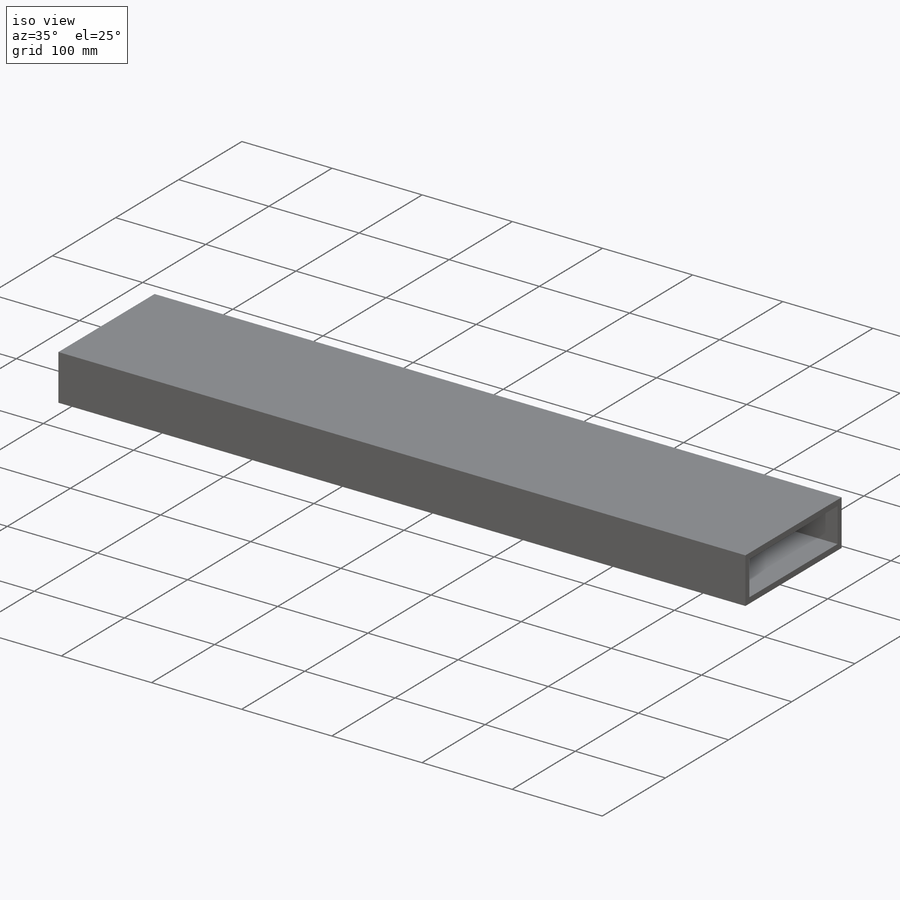
[diagram: iso view]
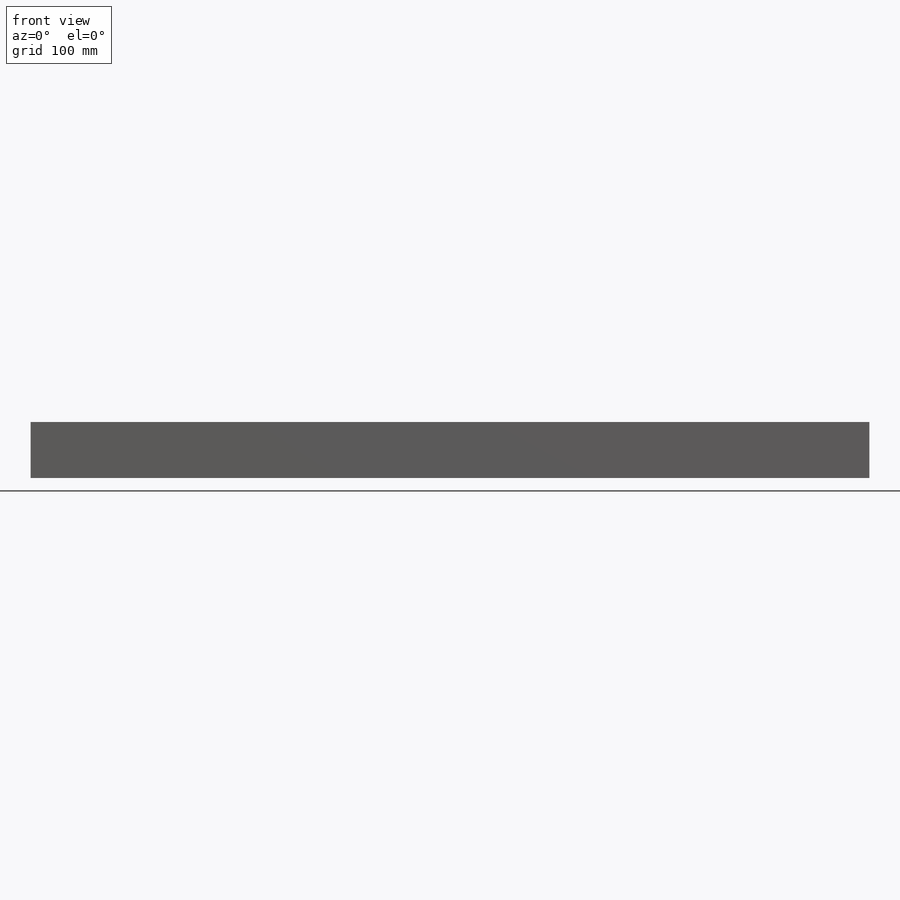
[diagram: front view]
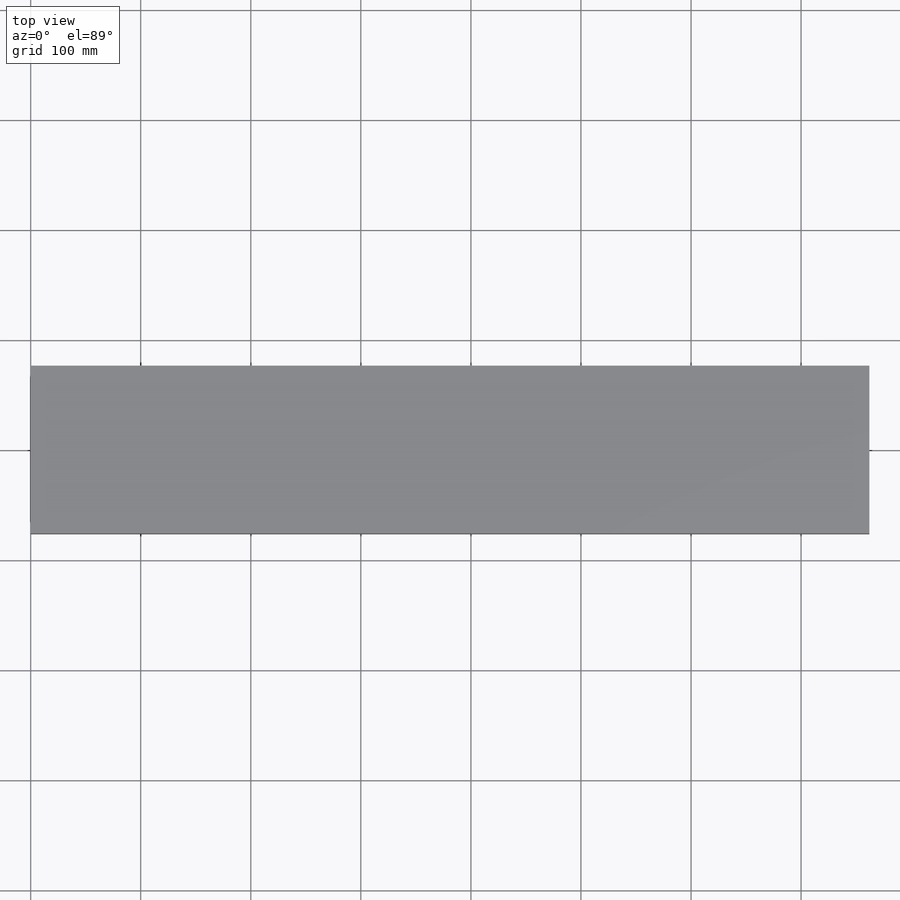
[diagram: top view]
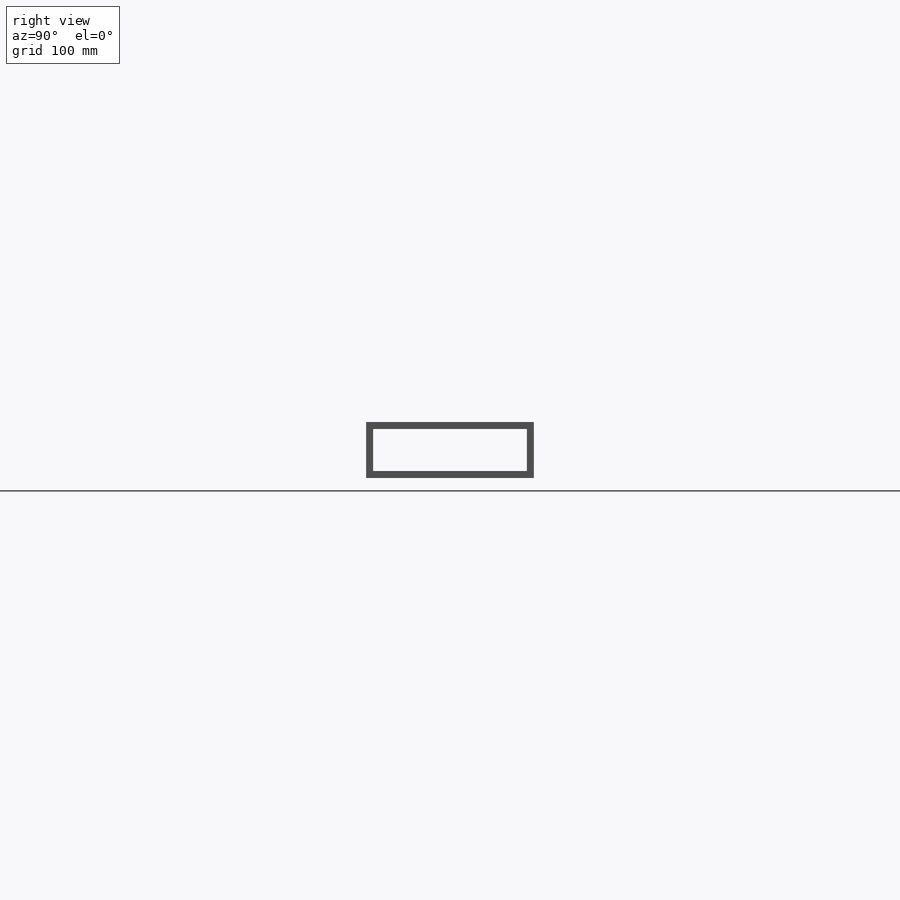
[diagram: right view]
SOLIDWORKS PART (.sldprt)
format: sldprt  version: not decoded by parser v0  size: 167,424 bytes
history: native  units: mm
features: sketch x6, material x1, extrude x1, hole x1 (+12 scaffold rows collapsed)
feature tree (21):
  scaffold x12  (default folders/planes/origin — collapsed)
  material  "Material <not specified>"
  sketch  "Sketch1"  dims[D1=152.4mm D2=50.8mm D3=6.35mm D4=6.35mm]
  extrude  "Boss-Extrude1"  Depth=400mm
  sketch  "Sketch2"  dims[D1=~309.687799mm]
  sketch  "Sketch4"  dims[D1=309.69mm]
  sketch  "Sketch5"
  hole  "M8 Clearance Hole1"  Diameter=9mm Depth=50.8mm
  sketch  "Sketch7"
  sketch  "Sketch6"  dims[hole-wizard template sketch: 60 standard entries collapsed; hole parameters kept: c18.Thru Hole Depth=50.8mm]
decode coverage: 6 of 8 modeling features carry decoded parameters
note: ~ marks probable driven/reference dimensions
note: suppression state not decoded; provenance and decode notes live in map.json
